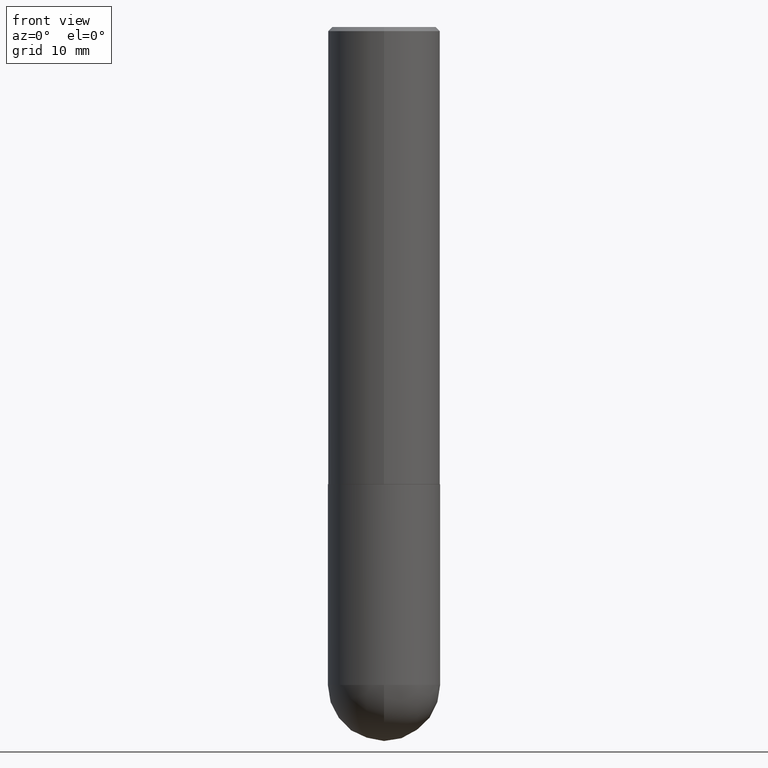
[diagram: clean part render]
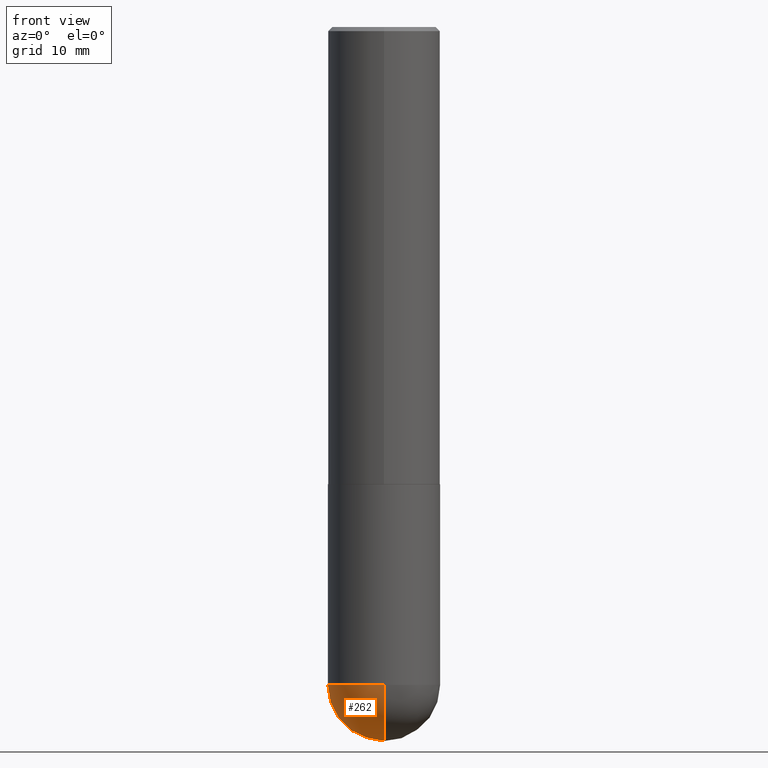
[diagram: same view with one face highlighted and labeled with its STEP entity id]
A machine part, front view. The second image highlights one B-rep face of the part: STEP entity #262.
In plain terms, the highlighted spherical surface has radius 7.0002 mm.
Its self-contained STEP definition (entity closure, byte-faithful):
#1 = CARTESIAN_POINT ( 'NONE',  ( 7.563587169093589749E-29, -1.174573157432737594E-14, -3.228299999999999503 ) ) ;
#5 = CIRCLE ( 'NONE', #226, 0.2756000000000000671 ) ;
#55 = CARTESIAN_POINT ( 'NONE',  ( 7.894706947007475996E-29, -1.127154920618732565E-14, -3.228299999999999503 ) ) ;
#60 = VERTEX_POINT ( 'NONE', #309 ) ;
#63 = DIRECTION ( 'NONE',  ( -2.445468806185136597E-29, 3.491481338843145583E-15, 1.000000000000000000 ) ) ;
#82 = DIRECTION ( 'NONE',  ( -1.000000000000000000, 6.982962677686265922E-15, -4.883557194083112340E-29 ) ) ;
#127 = CARTESIAN_POINT ( 'NONE',  ( 8.249342563543106087E-29, -1.269110819842029813E-14, -3.503899999999999793 ) ) ;
#128 = CARTESIAN_POINT ( 'NONE',  ( 7.563587169093589749E-29, -1.174573157432737594E-14, -3.228299999999999503 ) ) ;
#133 = DIRECTION ( 'NONE',  ( -1.000000000000000000, 7.105427357601001070E-15, -4.926315508542082329E-29 ) ) ;
#135 = CIRCLE ( 'NONE', #295, 0.2756000000000000671 ) ;
#145 = DIRECTION ( 'NONE',  ( 6.982962677686265922E-15, 1.000000000000000000, 0.000000000000000000 ) ) ;
#166 = CARTESIAN_POINT ( 'NONE',  ( -0.2756000000000000671, -7.595135459587778194E-15, -3.228299999999999503 ) ) ;
#172 = VERTEX_POINT ( 'NONE', #166 ) ;
#174 = EDGE_CURVE ( 'NONE', #274, #60, #285, .T. ) ;
#180 = CARTESIAN_POINT ( 'NONE',  ( 1.924504513970413840E-15, 0.2755999999999887429, -3.228300000000000836 ) ) ;
#194 = ORIENTED_EDGE ( 'NONE', *, *, #174, .T. ) ;
#209 = SPHERICAL_SURFACE ( 'NONE', #305, 0.2756000000000003447 ) ;
#223 = EDGE_CURVE ( 'NONE', #274, #411, #343, .T. ) ;
#226 = AXIS2_PLACEMENT_3D ( 'NONE', #409, #63, #370 ) ;
#228 = ORIENTED_EDGE ( 'NONE', *, *, #368, .F. ) ;
#247 = DIRECTION ( 'NONE',  ( 6.982962677686265922E-15, 1.000000000000000000, -3.964946289788475374E-15 ) ) ;
#257 = DIRECTION ( 'NONE',  ( -7.105427357601001859E-15, -1.000000000000000000, 0.000000000000000000 ) ) ;
#262 = ADVANCED_FACE ( 'NONE', ( #264 ), #209, .T. ) ;
#264 = FACE_OUTER_BOUND ( 'NONE', #346, .T. ) ;
#270 = ORIENTED_EDGE ( 'NONE', *, *, #395, .F. ) ;
#274 = VERTEX_POINT ( 'NONE', #127 ) ;
#285 = CIRCLE ( 'NONE', #335, 0.2756000000000003447 ) ;
#286 = AXIS2_PLACEMENT_3D ( 'NONE', #296, #300, #145 ) ;
#295 = AXIS2_PLACEMENT_3D ( 'NONE', #55, #402, #310 ) ;
#296 = CARTESIAN_POINT ( 'NONE',  ( 7.563587169093589749E-29, -1.174573157432737594E-14, -3.228299999999999503 ) ) ;
#300 = DIRECTION ( 'NONE',  ( 1.000000000000000000, -6.982962677686265922E-15, 4.883557194083112340E-29 ) ) ;
#305 = AXIS2_PLACEMENT_3D ( 'NONE', #128, #82, #247 ) ;
#309 = CARTESIAN_POINT ( 'NONE',  ( -1.958255779754759675E-15, -0.2756000000000117245, -3.228299999999998615 ) ) ;
#310 = DIRECTION ( 'NONE',  ( 1.000000000000000000, -6.982962677686264344E-15, 0.000000000000000000 ) ) ;
#334 = ORIENTED_EDGE ( 'NONE', *, *, #223, .F. ) ;
#335 = AXIS2_PLACEMENT_3D ( 'NONE', #1, #133, #257 ) ;
#343 = CIRCLE ( 'NONE', #286, 0.2756000000000003447 ) ;
#346 = EDGE_LOOP ( 'NONE', ( #334, #194, #270, #228 ) ) ;
#368 = EDGE_CURVE ( 'NONE', #411, #172, #5, .T. ) ;
#370 = DIRECTION ( 'NONE',  ( 1.000000000000000000, -6.982962677686264344E-15, 0.000000000000000000 ) ) ;
#395 = EDGE_CURVE ( 'NONE', #172, #60, #135, .T. ) ;
#402 = DIRECTION ( 'NONE',  ( -2.445468806185136597E-29, 3.491481338843145583E-15, 1.000000000000000000 ) ) ;
#409 = CARTESIAN_POINT ( 'NONE',  ( 7.894706947007475996E-29, -1.127154920618732565E-14, -3.228299999999999503 ) ) ;
#411 = VERTEX_POINT ( 'NONE', #180 ) ;